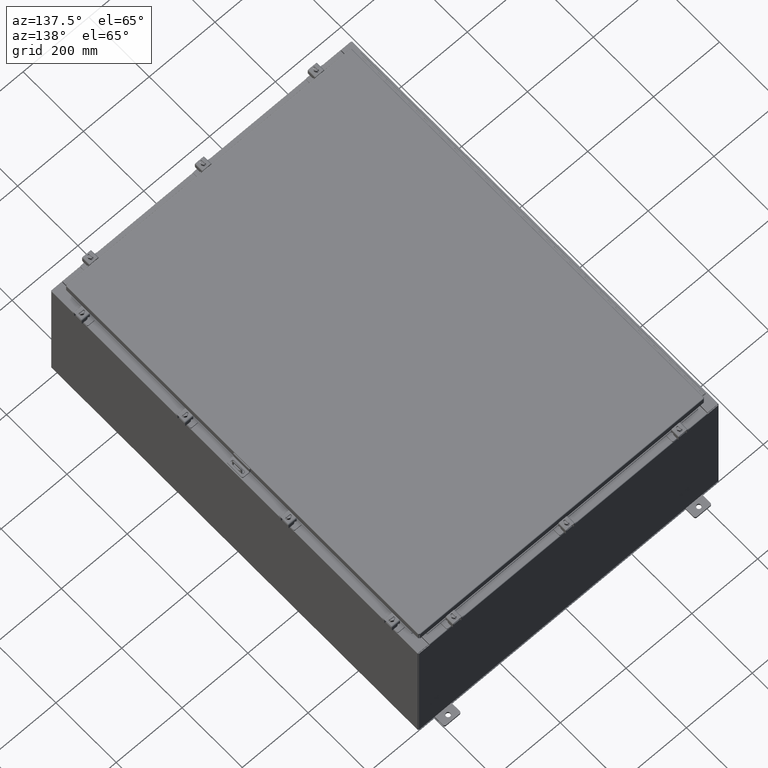
[diagram: clean part render]
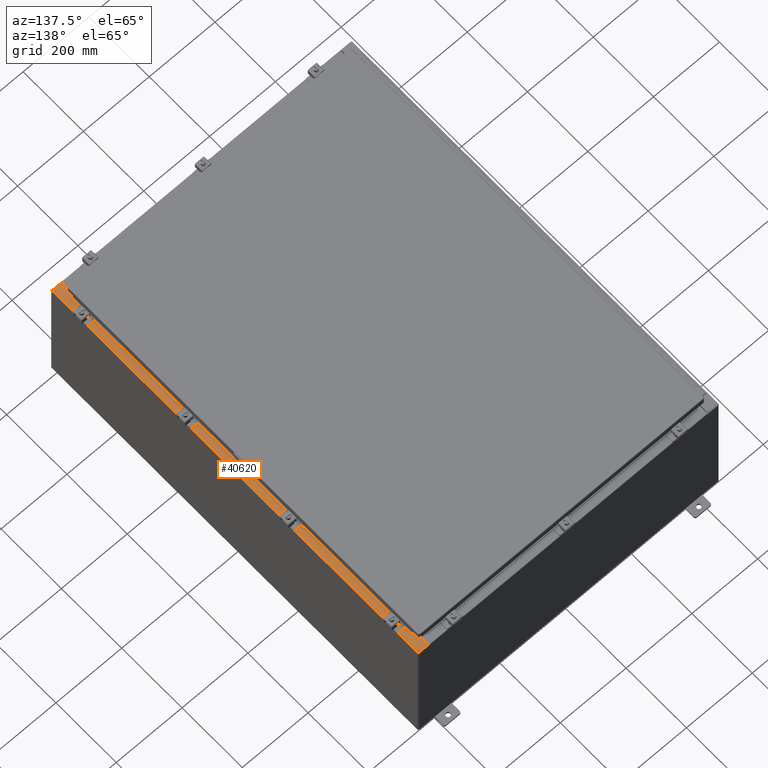
[diagram: same view with one face highlighted and labeled with its STEP entity id]
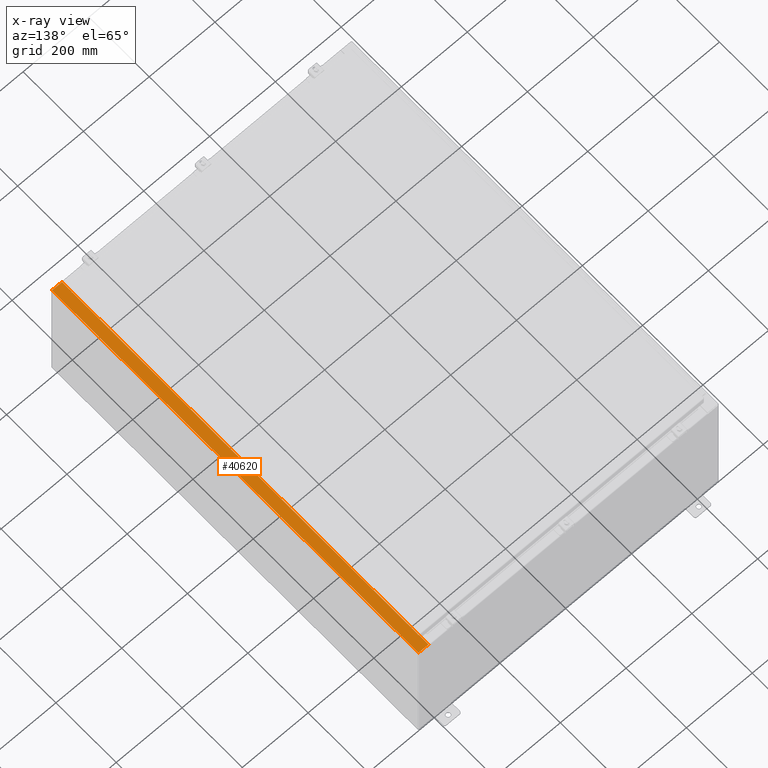
[diagram: x-ray of the same camera — body ghosted, the highlighted face saturated]
A machine part, auxiliary view. The second image highlights one B-rep face of the part: STEP entity #40620.
The next image is the same camera in x-ray: the body ghosted, the highlighted face saturated — about 0% of this face is hidden behind the body in this view.
In plain terms, the highlighted planar face has unit normal (-0, 0, -1).
Its self-contained STEP definition (entity closure, byte-faithful):
#494 = CARTESIAN_POINT ( 'NONE',  ( 16.69970000000005000, 23.92529999999998200, 15.92530000000000500 ) ) ;
#510 = ORIENTED_EDGE ( 'NONE', *, *, #1736, .F. ) ;
#1736 = EDGE_CURVE ( 'NONE', #3434, #27329, #25368, .T. ) ;
#1758 = ORIENTED_EDGE ( 'NONE', *, *, #2392, .F. ) ;
#2226 = EDGE_CURVE ( 'NONE', #24757, #45691, #12839, .T. ) ;
#2303 = EDGE_CURVE ( 'NONE', #53984, #45691, #32487, .T. ) ;
#2392 = EDGE_CURVE ( 'NONE', #27002, #51832, #18762, .T. ) ;
#2554 = CARTESIAN_POINT ( 'NONE',  ( 1.138521944745543500E-013, -23.92529999999998900, 15.92530000000012600 ) ) ;
#3033 = VECTOR ( 'NONE', #49909, 39.37007874015748100 ) ;
#3434 = VERTEX_POINT ( 'NONE', #14851 ) ;
#3465 = EDGE_CURVE ( 'NONE', #8527, #18718, #53729, .T. ) ;
#4016 = CIRCLE ( 'NONE', #23525, 0.01867499999999949400 ) ;
#4220 = CARTESIAN_POINT ( 'NONE',  ( 16.71270000000005100, 22.59374999999997200, 15.92530000000000900 ) ) ;
#5803 = EDGE_CURVE ( 'NONE', #49318, #38159, #50899, .T. ) ;
#6203 = VECTOR ( 'NONE', #46015, 39.37007874015748100 ) ;
#6306 = LINE ( 'NONE', #17352, #29959 ) ;
#6939 = CARTESIAN_POINT ( 'NONE',  ( 16.71270000000005100, -22.59374999999998900, 15.92530000000000900 ) ) ;
#6948 = CARTESIAN_POINT ( 'NONE',  ( 17.91230000000005200, -23.92529999999998900, 15.92530000000000000 ) ) ;
#6998 = ORIENTED_EDGE ( 'NONE', *, *, #45029, .T. ) ;
#7119 = CARTESIAN_POINT ( 'NONE',  ( 16.71270000000005100, -22.59374999999998900, 15.92530000000000900 ) ) ;
#7185 = AXIS2_PLACEMENT_3D ( 'NONE', #12096, #41295, #16311 ) ;
#8527 = VERTEX_POINT ( 'NONE', #16641 ) ;
#9333 = ORIENTED_EDGE ( 'NONE', *, *, #53424, .F. ) ;
#9696 = EDGE_CURVE ( 'NONE', #27329, #49318, #35201, .T. ) ;
#10187 = VECTOR ( 'NONE', #49495, 39.37007874015748100 ) ;
#10758 = CARTESIAN_POINT ( 'NONE',  ( 16.75005000000005100, 22.61242499999997000, 15.92530000000000900 ) ) ;
#11096 = CARTESIAN_POINT ( 'NONE',  ( 16.75005000000005100, -22.59374999999998900, 15.92530000000000900 ) ) ;
#12096 = CARTESIAN_POINT ( 'NONE',  ( 16.75005000000005100, -22.61242499999998800, 15.92530000000000900 ) ) ;
#12354 = ORIENTED_EDGE ( 'NONE', *, *, #2226, .F. ) ;
#12672 = CARTESIAN_POINT ( 'NONE',  ( 1.138521944745543500E-013, 23.92529999999998600, 15.92530000000012600 ) ) ;
#12839 = LINE ( 'NONE', #32468, #33815 ) ;
#14052 = DIRECTION ( 'NONE',  ( -1.000000000000000000, 0.0000000000000000000, 7.132762385546384700E-015 ) ) ;
#14683 = ORIENTED_EDGE ( 'NONE', *, *, #41419, .F. ) ;
#14739 = CARTESIAN_POINT ( 'NONE',  ( 17.91230000000005200, 23.92529999999998600, 15.92530000000000000 ) ) ;
#14851 = CARTESIAN_POINT ( 'NONE',  ( 16.69970000000005000, -22.63109999999998600, 15.92530000000000500 ) ) ;
#14997 = DIRECTION ( 'NONE',  ( 1.000000000000000000, 0.0000000000000000000, 0.0000000000000000000 ) ) ;
#15311 = DIRECTION ( 'NONE',  ( -1.000000000000000000, 0.0000000000000000000, 0.0000000000000000000 ) ) ;
#15331 = EDGE_CURVE ( 'NONE', #3434, #8527, #6306, .T. ) ;
#15385 = ORIENTED_EDGE ( 'NONE', *, *, #3465, .T. ) ;
#16311 = DIRECTION ( 'NONE',  ( 1.000000000000000000, 0.0000000000000000000, 0.0000000000000000000 ) ) ;
#16451 = ORIENTED_EDGE ( 'NONE', *, *, #5803, .F. ) ;
#16641 = CARTESIAN_POINT ( 'NONE',  ( 16.69970000000005000, -23.92529999999998900, 15.92530000000000500 ) ) ;
#16880 = DIRECTION ( 'NONE',  ( -1.000000000000000000, 4.379057701015053300E-047, 7.132762385546384700E-015 ) ) ;
#17162 = EDGE_LOOP ( 'NONE', ( #510, #27326, #15385, #14683, #6998, #52656, #12354, #9333, #1758, #47703, #16451, #35115 ) ) ;
#17314 = CARTESIAN_POINT ( 'NONE',  ( 16.75005000000005100, 22.63109999999996800, 15.92530000000000500 ) ) ;
#17352 = CARTESIAN_POINT ( 'NONE',  ( 16.69970000000005000, 5.279815919650416800E-030, 15.92530000000000500 ) ) ;
#17672 = VECTOR ( 'NONE', #15311, 39.37007874015748100 ) ;
#18718 = VERTEX_POINT ( 'NONE', #49006 ) ;
#18762 = LINE ( 'NONE', #4220, #6203 ) ;
#19411 = CARTESIAN_POINT ( 'NONE',  ( 16.75005000000005100, 22.59374999999997200, 15.92530000000000500 ) ) ;
#19904 = LINE ( 'NONE', #12672, #40744 ) ;
#20983 = CARTESIAN_POINT ( 'NONE',  ( 16.71270000000005100, 22.59374999999997200, 15.92530000000000900 ) ) ;
#21595 = FACE_OUTER_BOUND ( 'NONE', #17162, .T. ) ;
#22911 = LINE ( 'NONE', #6948, #44988 ) ;
#23316 = CARTESIAN_POINT ( 'NONE',  ( 16.75005000000005100, -22.63109999999998600, 15.92530000000000500 ) ) ;
#23525 = AXIS2_PLACEMENT_3D ( 'NONE', #10758, #40005, #14997 ) ;
#24617 = CARTESIAN_POINT ( 'NONE',  ( 16.69970000000005000, 5.279815919650416800E-030, 15.92530000000000500 ) ) ;
#24757 = VERTEX_POINT ( 'NONE', #17314 ) ;
#25368 = LINE ( 'NONE', #29237, #3033 ) ;
#25650 = CARTESIAN_POINT ( 'NONE',  ( 16.69970000000005000, 22.63109999999996800, 15.92530000000000500 ) ) ;
#26200 = CARTESIAN_POINT ( 'NONE',  ( 16.75005000000005100, -22.59374999999998900, 15.92530000000000500 ) ) ;
#27002 = VERTEX_POINT ( 'NONE', #20983 ) ;
#27326 = ORIENTED_EDGE ( 'NONE', *, *, #15331, .T. ) ;
#27329 = VERTEX_POINT ( 'NONE', #23316 ) ;
#27675 = DIRECTION ( 'NONE',  ( 1.000000000000000000, 8.144358738339254500E-032, -7.132762385546384700E-015 ) ) ;
#29237 = CARTESIAN_POINT ( 'NONE',  ( 16.69970000000005000, -22.63109999999998600, 15.92530000000000500 ) ) ;
#29959 = VECTOR ( 'NONE', #46459, 39.37007874015748100 ) ;
#30699 = PLANE ( 'NONE',  #50469 ) ;
#32468 = CARTESIAN_POINT ( 'NONE',  ( 16.75005000000005100, 22.63109999999996800, 15.92530000000000900 ) ) ;
#32487 = LINE ( 'NONE', #24617, #10187 ) ;
#33577 = VECTOR ( 'NONE', #48738, 39.37007874015748100 ) ;
#33815 = VECTOR ( 'NONE', #40792, 39.37007874015748100 ) ;
#34886 = LINE ( 'NONE', #6939, #33577 ) ;
#35115 = ORIENTED_EDGE ( 'NONE', *, *, #9696, .F. ) ;
#35201 = CIRCLE ( 'NONE', #7185, 0.01867499999999949400 ) ;
#36291 = DIRECTION ( 'NONE',  ( -0.0000000000000000000, -1.000000000000000000, -0.0000000000000000000 ) ) ;
#38145 = EDGE_CURVE ( 'NONE', #38159, #27002, #34886, .T. ) ;
#38159 = VERTEX_POINT ( 'NONE', #7119 ) ;
#39075 = DIRECTION ( 'NONE',  ( -7.132762385546384700E-015, 0.0000000000000000000, -1.000000000000000000 ) ) ;
#40005 = DIRECTION ( 'NONE',  ( 7.132762385546384700E-015, 0.0000000000000000000, 1.000000000000000000 ) ) ;
#40620 = ADVANCED_FACE ( 'NONE', ( #21595 ), #30699, .F. ) ;
#40744 = VECTOR ( 'NONE', #16880, 39.37007874015748100 ) ;
#40792 = DIRECTION ( 'NONE',  ( -1.000000000000000000, 0.0000000000000000000, -4.340572780400098900E-014 ) ) ;
#41295 = DIRECTION ( 'NONE',  ( 7.132762385546384700E-015, 0.0000000000000000000, 1.000000000000000000 ) ) ;
#41419 = EDGE_CURVE ( 'NONE', #52269, #18718, #22911, .T. ) ;
#42725 = VECTOR ( 'NONE', #27675, 39.37007874015748100 ) ;
#43042 = CARTESIAN_POINT ( 'NONE',  ( 1.138521944745543500E-013, 0.0000000000000000000, 15.92530000000012600 ) ) ;
#44988 = VECTOR ( 'NONE', #36291, 39.37007874015748100 ) ;
#45029 = EDGE_CURVE ( 'NONE', #52269, #53984, #19904, .T. ) ;
#45691 = VERTEX_POINT ( 'NONE', #25650 ) ;
#46015 = DIRECTION ( 'NONE',  ( 1.000000000000000000, 0.0000000000000000000, 0.0000000000000000000 ) ) ;
#46459 = DIRECTION ( 'NONE',  ( 3.161623214578966600E-031, -1.000000000000000000, -2.255110714221909800E-045 ) ) ;
#47703 = ORIENTED_EDGE ( 'NONE', *, *, #38145, .F. ) ;
#48738 = DIRECTION ( 'NONE',  ( -0.0000000000000000000, 1.000000000000000000, -0.0000000000000000000 ) ) ;
#49006 = CARTESIAN_POINT ( 'NONE',  ( 17.91230000000005200, -23.92529999999998900, 15.92530000000000000 ) ) ;
#49318 = VERTEX_POINT ( 'NONE', #26200 ) ;
#49495 = DIRECTION ( 'NONE',  ( 3.161623214578966600E-031, -1.000000000000000000, -2.255110714221909800E-045 ) ) ;
#49909 = DIRECTION ( 'NONE',  ( 1.000000000000000000, 0.0000000000000000000, 4.340572780400098900E-014 ) ) ;
#50469 = AXIS2_PLACEMENT_3D ( 'NONE', #43042, #39075, #14052 ) ;
#50899 = LINE ( 'NONE', #11096, #17672 ) ;
#51832 = VERTEX_POINT ( 'NONE', #19411 ) ;
#52269 = VERTEX_POINT ( 'NONE', #14739 ) ;
#52656 = ORIENTED_EDGE ( 'NONE', *, *, #2303, .T. ) ;
#53424 = EDGE_CURVE ( 'NONE', #51832, #24757, #4016, .T. ) ;
#53729 = LINE ( 'NONE', #2554, #42725 ) ;
#53984 = VERTEX_POINT ( 'NONE', #494 ) ;